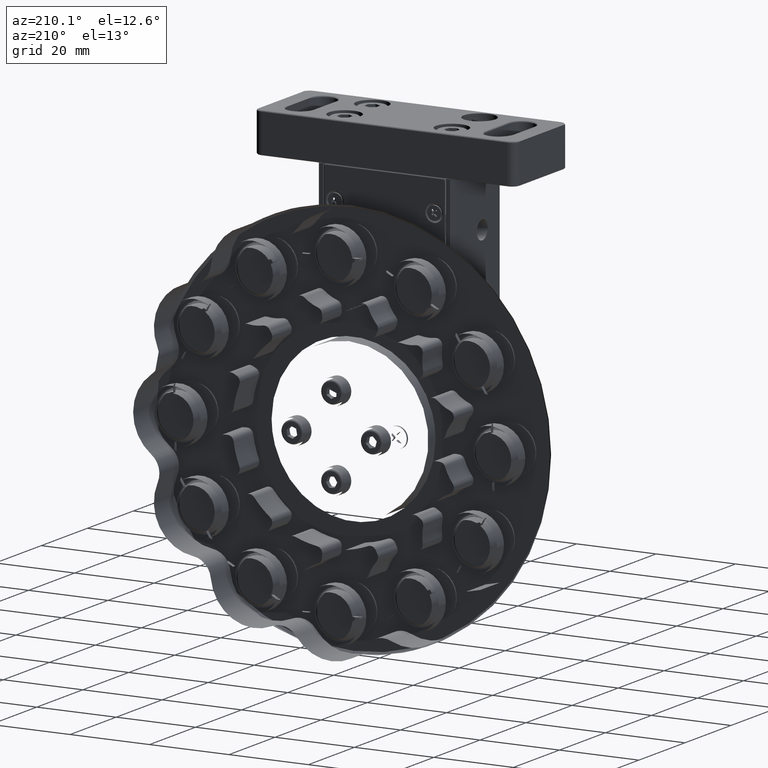
[diagram: clean part render]
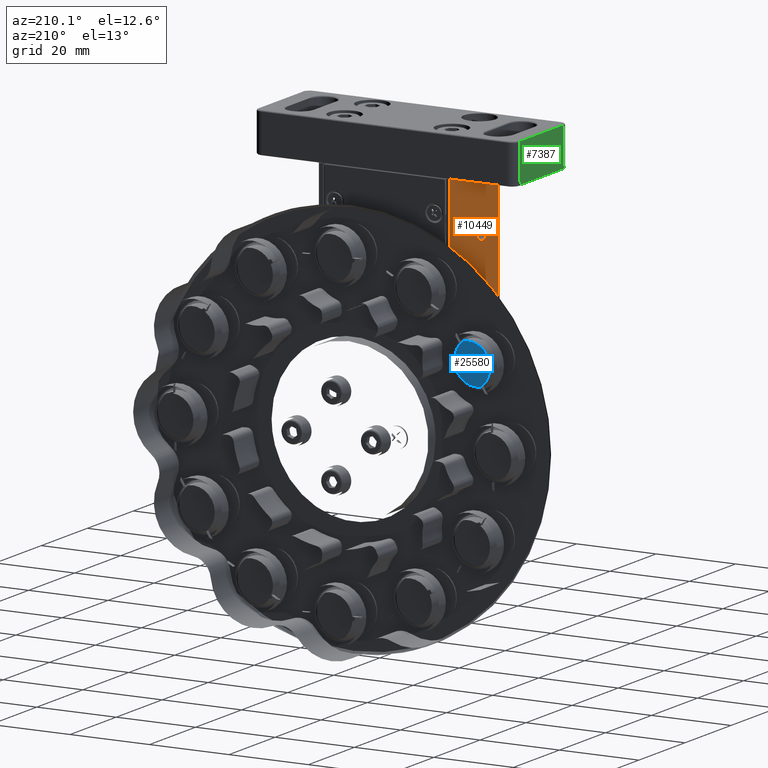
[diagram: same view with three faces highlighted in distinct colors, each labeled with its STEP entity id]
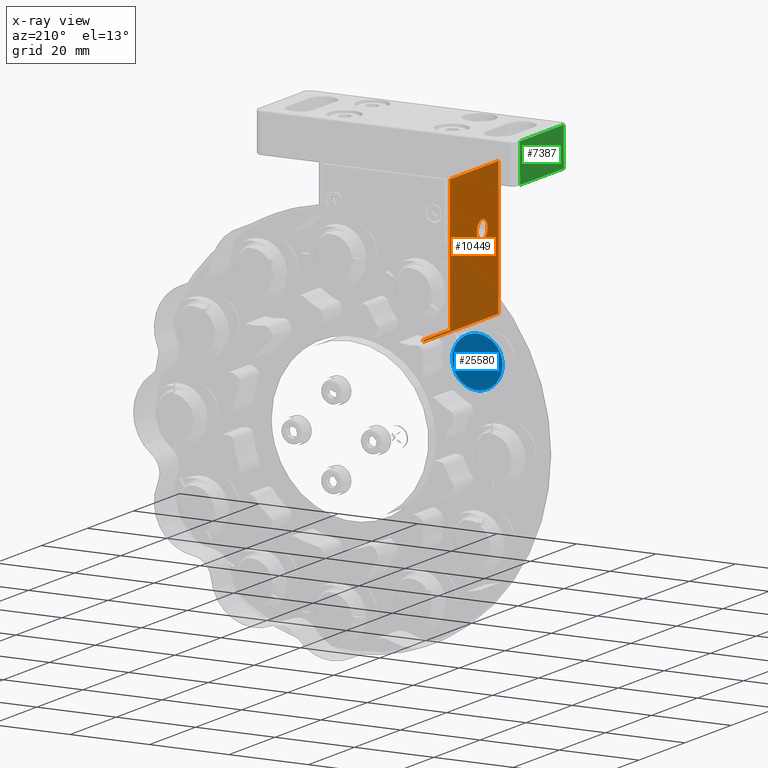
[diagram: x-ray of the same camera — body ghosted, the three highlighted faces saturated]
A machine part, auxiliary view with three faces highlighted in distinct colors.
The next image is the same camera in x-ray (body ghosted, the three faces saturated) — at least one of them is partly hidden behind the body in this view.
Their STEP definitions:

[orange] entity #10449 — the highlighted planar face has unit normal (1, 0, -0).
#63 = ORIENTED_EDGE ( 'NONE', *, *, #3099, .F. ) ;
#840 = DIRECTION ( 'NONE',  ( -1.031704847357960561E-16, 0.000000000000000000, -1.000000000000000000 ) ) ;
#1962 = CIRCLE ( 'NONE', #21142, 2.349999999999990763 ) ;
#2708 = ORIENTED_EDGE ( 'NONE', *, *, #3838, .T. ) ;
#3099 = EDGE_CURVE ( 'NONE', #26168, #29424, #16465, .T. ) ;
#3104 = VECTOR ( 'NONE', #16328, 1000.000000000000000 ) ;
#3119 = ORIENTED_EDGE ( 'NONE', *, *, #3580, .F. ) ;
#3580 = EDGE_CURVE ( 'NONE', #29424, #6994, #12234, .T. ) ;
#3750 = VERTEX_POINT ( 'NONE', #12898 ) ;
#3838 = EDGE_CURVE ( 'NONE', #28219, #6994, #29653, .T. ) ;
#4744 = DIRECTION ( 'NONE',  ( 0.000000000000000000, 0.000000000000000000, 1.000000000000000000 ) ) ;
#4745 = DIRECTION ( 'NONE',  ( -0.000000000000000000, -1.000000000000000000, -0.000000000000000000 ) ) ;
#5104 = VECTOR ( 'NONE', #24813, 1000.000000000000000 ) ;
#5358 = EDGE_CURVE ( 'NONE', #28219, #23549, #15290, .T. ) ;
#6027 = CARTESIAN_POINT ( 'NONE',  ( -34.53769428238040717, 14.58610521439863383, 91.37171027316250616 ) ) ;
#6610 = EDGE_CURVE ( 'NONE', #23549, #18981, #29003, .T. ) ;
#6658 = CARTESIAN_POINT ( 'NONE',  ( -34.53769428238040717, -2.413894785601366610, 91.37171027316249194 ) ) ;
#6680 = CARTESIAN_POINT ( 'NONE',  ( -34.53769428238040717, -6.413894785601367055, 125.0000000000000000 ) ) ;
#6792 = ORIENTED_EDGE ( 'NONE', *, *, #17665, .F. ) ;
#6994 = VERTEX_POINT ( 'NONE', #29384 ) ;
#7042 = CARTESIAN_POINT ( 'NONE',  ( -34.53769428238040007, -2.413894785601366610, 125.0000000000000000 ) ) ;
#8157 = VECTOR ( 'NONE', #12756, 1000.000000000000000 ) ;
#8402 = DIRECTION ( 'NONE',  ( -1.031704847357960561E-16, 0.000000000000000000, -1.000000000000000000 ) ) ;
#8419 = VECTOR ( 'NONE', #4745, 1000.000000000000000 ) ;
#8898 = VECTOR ( 'NONE', #10347, 1000.000000000000000 ) ;
#10347 = DIRECTION ( 'NONE',  ( 1.031704847357960561E-16, -0.000000000000000000, 1.000000000000000000 ) ) ;
#10449 = ADVANCED_FACE ( 'NONE', ( #17841, #24765 ), #10663, .F. ) ;
#10663 = PLANE ( 'NONE',  #11450 ) ;
#11450 = AXIS2_PLACEMENT_3D ( 'NONE', #26562, #20110, #8402 ) ;
#12139 = ORIENTED_EDGE ( 'NONE', *, *, #5358, .F. ) ;
#12234 = LINE ( 'NONE', #14489, #24216 ) ;
#12594 = ORIENTED_EDGE ( 'NONE', *, *, #26213, .F. ) ;
#12756 = DIRECTION ( 'NONE',  ( 1.031704847357960561E-16, -0.000000000000000000, 1.000000000000000000 ) ) ;
#12828 = ORIENTED_EDGE ( 'NONE', *, *, #6610, .F. ) ;
#12898 = CARTESIAN_POINT ( 'NONE',  ( -34.53769428238040717, 0.5861052143986325014, 113.3499999999999801 ) ) ;
#14108 = EDGE_LOOP ( 'NONE', ( #3119, #63, #6792, #12828, #12139, #2708 ) ) ;
#14489 = CARTESIAN_POINT ( 'NONE',  ( -34.53769428238040717, -6.413894785601367055, 91.37171027316250616 ) ) ;
#15290 = LINE ( 'NONE', #29092, #8898 ) ;
#16328 = DIRECTION ( 'NONE',  ( -0.000000000000000000, -1.000000000000000000, -0.000000000000000000 ) ) ;
#16465 = LINE ( 'NONE', #7042, #3104 ) ;
#17665 = EDGE_CURVE ( 'NONE', #18981, #26168, #19805, .T. ) ;
#17841 = FACE_OUTER_BOUND ( 'NONE', #14108, .T. ) ;
#18375 = CARTESIAN_POINT ( 'NONE',  ( -34.53769428238040007, 14.58610521439863383, 125.0000000000000000 ) ) ;
#18376 = CARTESIAN_POINT ( 'NONE',  ( -34.53769428238040007, -8.413894785601366166, 90.92247595290767492 ) ) ;
#18672 = DIRECTION ( 'NONE',  ( -1.000000000000000000, 0.000000000000000000, 1.031704847357960561E-16 ) ) ;
#18981 = VERTEX_POINT ( 'NONE', #26484 ) ;
#19805 = LINE ( 'NONE', #6027, #8157 ) ;
#20110 = DIRECTION ( 'NONE',  ( 1.000000000000000000, 0.000000000000000000, -1.031704847357960561E-16 ) ) ;
#21142 = AXIS2_PLACEMENT_3D ( 'NONE', #27559, #18672, #4744 ) ;
#23549 = VERTEX_POINT ( 'NONE', #24217 ) ;
#24216 = VECTOR ( 'NONE', #840, 1000.000000000000000 ) ;
#24217 = CARTESIAN_POINT ( 'NONE',  ( -34.53769428238040717, 26.08610521439862850, 91.37171027316249194 ) ) ;
#24765 = FACE_BOUND ( 'NONE', #28970, .T. ) ;
#24813 = DIRECTION ( 'NONE',  ( -0.000000000000000000, -1.000000000000000000, -0.000000000000000000 ) ) ;
#26125 = CARTESIAN_POINT ( 'NONE',  ( -34.53769428235425920, 26.08610521440115804, 90.92247595290767492 ) ) ;
#26168 = VERTEX_POINT ( 'NONE', #18375 ) ;
#26213 = EDGE_CURVE ( 'NONE', #3750, #3750, #1962, .T. ) ;
#26484 = CARTESIAN_POINT ( 'NONE',  ( -34.53769428238040717, 14.58610521439863206, 91.37171027316249194 ) ) ;
#26562 = CARTESIAN_POINT ( 'NONE',  ( -34.53769428238040717, -2.413894785601366610, 91.37171027316250616 ) ) ;
#27559 = CARTESIAN_POINT ( 'NONE',  ( -34.53769428238040717, 0.5861052143986325014, 110.9999999999999858 ) ) ;
#28219 = VERTEX_POINT ( 'NONE', #26125 ) ;
#28970 = EDGE_LOOP ( 'NONE', ( #12594 ) ) ;
#29003 = LINE ( 'NONE', #6658, #5104 ) ;
#29092 = CARTESIAN_POINT ( 'NONE',  ( -34.53769428238040717, 26.08610521439862850, 91.37171027316250616 ) ) ;
#29384 = CARTESIAN_POINT ( 'NONE',  ( -34.53769428238040007, -6.413894785601367055, 90.92247595290767492 ) ) ;
#29424 = VERTEX_POINT ( 'NONE', #6680 ) ;
#29653 = LINE ( 'NONE', #18376, #8419 ) ;

[blue] entity #25580 — the highlighted planar face has unit normal (-0, 1, 0).
#306 = CARTESIAN_POINT ( 'NONE',  ( -46.54255261715549352, 33.98610521441030841, 91.64871715717247014 ) ) ;
#375 = CARTESIAN_POINT ( 'NONE',  ( -55.83755807229569257, 33.98610521441032262, 95.50963303698830487 ) ) ;
#463 = CARTESIAN_POINT ( 'NONE',  ( -46.33581467661826991, 33.98610521441030130, 89.66713007071223274 ) ) ;
#614 = CARTESIAN_POINT ( 'NONE',  ( -48.99884628078824989, 33.98610521441032262, 95.17666034591101720 ) ) ;
#675 = CARTESIAN_POINT ( 'NONE',  ( -51.11486080441471813, 33.98610521441031551, 96.15595798441793818 ) ) ;
#766 = CARTESIAN_POINT ( 'NONE',  ( -46.35960467449062605, 33.98610521441031551, 90.62786825280095115 ) ) ;
#828 = CARTESIAN_POINT ( 'NONE',  ( -52.71940842209436795, 33.98610521441032262, 96.35626561464586359 ) ) ;
#913 = CARTESIAN_POINT ( 'NONE',  ( -51.72388958249054980, 33.98610521441032972, 83.72048057288830591 ) ) ;
#1055 = CARTESIAN_POINT ( 'NONE',  ( -47.83502010039241981, 33.98610521441032262, 85.88858657646885320 ) ) ;
#1200 = CARTESIAN_POINT ( 'NONE',  ( -54.95856204972223225, 33.98610521441032972, 84.06064785177267140 ) ) ;
#1335 = CARTESIAN_POINT ( 'NONE',  ( -57.84755923170578740, 33.98610521441031551, 86.30043805578121408 ) ) ;
#1499 = CARTESIAN_POINT ( 'NONE',  ( -48.29346967437561489, 33.98610521441031551, 85.40531669635137746 ) ) ;
#2329 = CARTESIAN_POINT ( 'NONE',  ( -58.76499867434053215, 33.98610521441032262, 91.81114672173197278 ) ) ;
#2478 = CARTESIAN_POINT ( 'NONE',  ( -54.95568087154751424, 33.98610521441032262, 95.94384509437611541 ) ) ;
#2564 = CARTESIAN_POINT ( 'NONE',  ( -47.87889789936966878, 33.98610521441030841, 94.15777795652786608 ) ) ;
#2771 = CARTESIAN_POINT ( 'NONE',  ( -56.11009563452113014, 33.98610521441032262, 95.34418072971917013 ) ) ;
#2920 = CARTESIAN_POINT ( 'NONE',  ( -52.07903295699774304, 33.98610521441030841, 96.32184721078584744 ) ) ;
#3006 = CARTESIAN_POINT ( 'NONE',  ( -46.46298617230700501, 33.98610521441031551, 91.33119768661372007 ) ) ;
#3067 = CARTESIAN_POINT ( 'NONE',  ( -49.69901997499638213, 33.98610521441031551, 95.60749005963396030 ) ) ;
#3321 = EDGE_LOOP ( 'NONE', ( #28759, #17229 ) ) ;
#3447 = CARTESIAN_POINT ( 'NONE',  ( -51.34751274708773394, 33.98610521441031551, 83.78427573844193432 ) ) ;
#3575 = CARTESIAN_POINT ( 'NONE',  ( -57.02149109115475056, 33.98610521441031551, 85.35914194068412542 ) ) ;
#3746 = CARTESIAN_POINT ( 'NONE',  ( -46.57055921393713049, 33.98610521441030841, 88.26284770227685783 ) ) ;
#4297 = CARTESIAN_POINT ( 'NONE',  ( -59.03497604850634417, 33.98610521441030841, 89.95930201162411777 ) ) ;
#4739 = CARTESIAN_POINT ( 'NONE',  ( -58.91745453246607411, 33.98610521441031551, 91.21464824495545543 ) ) ;
#4888 = CARTESIAN_POINT ( 'NONE',  ( -55.35796152007777948, 33.98610521441031551, 95.77377180928988309 ) ) ;
#5103 = VERTEX_POINT ( 'NONE', #7215 ) ;
#5272 = CARTESIAN_POINT ( 'NONE',  ( -47.50986163590216904, 33.98610521441031551, 93.69956194407345151 ) ) ;
#5335 = CARTESIAN_POINT ( 'NONE',  ( -51.46406218868658300, 33.98610521441031551, 96.23874409857008061 ) ) ;
#5372 = EDGE_CURVE ( 'NONE', #18242, #5103, #29100, .T. ) ;
#5421 = CARTESIAN_POINT ( 'NONE',  ( -49.52760767734621794, 33.98610521441031551, 95.51640553119226240 ) ) ;
#5482 = CARTESIAN_POINT ( 'NONE',  ( -50.39885881783833810, 33.98610521441031551, 95.93935214805993894 ) ) ;
#5575 = CARTESIAN_POINT ( 'NONE',  ( -46.88916215607108740, 33.98610521441032262, 87.36299461548779277 ) ) ;
#5722 = CARTESIAN_POINT ( 'NONE',  ( -51.02999327653991912, 33.98610521441032972, 83.86384218328691986 ) ) ;
#6170 = CARTESIAN_POINT ( 'NONE',  ( -46.61535035352641643, 33.98610521441031551, 88.11354112680984940 ) ) ;
#6305 = CARTESIAN_POINT ( 'NONE',  ( -57.27339373738662687, 33.98610521441032972, 85.61475924051279662 ) ) ;
#6411 = CARTESIAN_POINT ( 'NONE',  ( -57.68050199964804392, 33.98610521441032262, 93.91217820484897061 ) ) ;
#6708 = CARTESIAN_POINT ( 'NONE',  ( -58.19517138448740212, 33.98610521441030841, 93.15103299592438191 ) ) ;
#6853 = CARTESIAN_POINT ( 'NONE',  ( -57.71026192515790143, 33.98610521441032262, 93.87383038695442394 ) ) ;
#7215 = CARTESIAN_POINT ( 'NONE',  ( -49.69901997499638213, 33.98610521441031551, 95.60749005963396030 ) ) ;
#7373 = CARTESIAN_POINT ( 'NONE',  ( -48.76651533376750081, 33.98610521441031551, 95.00177814388349873 ) ) ;
#7431 = CARTESIAN_POINT ( 'NONE',  ( -51.76782802840221365, 33.98610521441031551, 96.28771377049586988 ) ) ;
#7522 = CARTESIAN_POINT ( 'NONE',  ( -48.08402713019276575, 33.98610521441031551, 94.38524075932211588 ) ) ;
#7589 = CARTESIAN_POINT ( 'NONE',  ( -52.02343865454446359, 33.98610521441030841, 96.31630524460605614 ) ) ;
#7740 = CARTESIAN_POINT ( 'NONE',  ( -56.95033385471455745, 33.98610521441030841, 94.69877891048497531 ) ) ;
#7823 = CARTESIAN_POINT ( 'NONE',  ( -46.39099666322111659, 33.98610521441030130, 89.08911759455794765 ) ) ;
#7963 = CARTESIAN_POINT ( 'NONE',  ( -47.69103002906020805, 33.98610521441030841, 86.06983734186307800 ) ) ;
#8096 = CARTESIAN_POINT ( 'NONE',  ( -55.82981319024818134, 33.98610521441032262, 84.48359446865833888 ) ) ;
#8110 = CARTESIAN_POINT ( 'NONE',  ( -47.16224948310409815, 33.98610521441031551, 86.84896700394070024 ) ) ;
#8235 = CARTESIAN_POINT ( 'NONE',  ( -58.18834347087381076, 33.98610521441030841, 86.84115236145743211 ) ) ;
#8246 = CARTESIAN_POINT ( 'NONE',  ( -54.48985715559300758, 33.98610521441032262, 83.91371175938364502 ) ) ;
#8379 = CARTESIAN_POINT ( 'NONE',  ( -58.99204664556392430, 33.98610521441031551, 89.31642300017286118 ) ) ;
#8394 = CARTESIAN_POINT ( 'NONE',  ( -47.64715894243835947, 33.98610521441031551, 86.12616961290454753 ) ) ;
#8540 = CARTESIAN_POINT ( 'NONE',  ( -56.49484811351060642, 33.98610521441030841, 84.92420118320947608 ) ) ;
#8632 = AXIS2_PLACEMENT_3D ( 'NONE', #27890, #16170, #12108 ) ;
#8658 = CARTESIAN_POINT ( 'NONE',  ( -58.83466841830828287, 33.98610521441032262, 91.56384962924856552 ) ) ;
#8801 = CARTESIAN_POINT ( 'NONE',  ( -57.52240076719252926, 33.98610521441031551, 94.11141342340393123 ) ) ;
#9239 = CARTESIAN_POINT ( 'NONE',  ( -59.00055764465573560, 33.98610521441030841, 90.59967747672698124 ) ) ;
#9524 = CARTESIAN_POINT ( 'NONE',  ( -54.32742759102352892, 33.98610521441032262, 96.13615781657033210 ) ) ;
#9672 = CARTESIAN_POINT ( 'NONE',  ( -53.47095461567096919, 33.98610521441031551, 96.30063899361304891 ) ) ;
#9765 = CARTESIAN_POINT ( 'NONE',  ( -48.56729701031778745, 33.98610521441030841, 94.84369033331229559 ) ) ;
#9917 = CARTESIAN_POINT ( 'NONE',  ( -46.39919100675544428, 33.98610521441031551, 90.95482085121732041 ) ) ;
#10066 = CARTESIAN_POINT ( 'NONE',  ( -53.89335867878202180, 33.98610521441031551, 83.76125590125002418 ) ) ;
#10211 = CARTESIAN_POINT ( 'NONE',  ( -53.58959283912285798, 33.98610521441031551, 83.71228622933867314 ) ) ;
#10363 = CARTESIAN_POINT ( 'NONE',  ( -47.50197734981319542, 33.98610521441031551, 86.32022740752896084 ) ) ;
#10493 = CARTESIAN_POINT ( 'NONE',  ( -57.37748934434934966, 33.98610521441032262, 85.72837657900620911 ) ) ;
#10642 = CARTESIAN_POINT ( 'NONE',  ( -58.95822986085175899, 33.98610521441032972, 89.04517914865745354 ) ) ;
#10656 = CARTESIAN_POINT ( 'NONE',  ( -50.40173999612657951, 33.98610521441032262, 84.05615490547066315 ) ) ;
#11062 = CARTESIAN_POINT ( 'NONE',  ( -58.99501567847615036, 33.98610521441031551, 90.65527177919469182 ) ) ;
#11481 = CARTESIAN_POINT ( 'NONE',  ( -58.75011794014469757, 33.98610521441031551, 91.86041452718664857 ) ) ;
#11625 = CARTESIAN_POINT ( 'NONE',  ( -56.37827237789424828, 33.98610521441032972, 95.16884879786847762 ) ) ;
#11707 = CARTESIAN_POINT ( 'NONE',  ( -49.27772205745944945, 33.98610521441031551, 95.36861606588827556 ) ) ;
#11920 = CARTESIAN_POINT ( 'NONE',  ( -53.63353128506138745, 33.98610521441032262, 96.27951942697002607 ) ) ;
#12108 = DIRECTION ( 'NONE',  ( -1.000000000000000000, -3.488278094132888891E-29, 0.000000000000000000 ) ) ;
#12162 = CARTESIAN_POINT ( 'NONE',  ( -46.37807144011296145, 33.98610521441030130, 90.79224418181642875 ) ) ;
#12221 = CARTESIAN_POINT ( 'NONE',  ( -53.30657868667901056, 33.98610521441030841, 96.31910575923518536 ) ) ;
#12313 = CARTESIAN_POINT ( 'NONE',  ( -53.33398221307466258, 33.98610521441030841, 83.68369475525240375 ) ) ;
#12458 = CARTESIAN_POINT ( 'NONE',  ( -48.40708701287279325, 33.98610521441031551, 85.30122108938475378 ) ) ;
#12602 = CARTESIAN_POINT ( 'NONE',  ( -54.41586273141477648, 33.98610521441031551, 83.89184878005681867 ) ) ;
#12732 = CARTESIAN_POINT ( 'NONE',  ( -57.47852296822960483, 33.98610521441032262, 85.84222204332576212 ) ) ;
#12880 = CARTESIAN_POINT ( 'NONE',  ( -58.81486825045005418, 33.98610521441031551, 88.35128284269723054 ) ) ;
#12894 = CARTESIAN_POINT ( 'NONE',  ( -46.59242219326117151, 33.98610521441031551, 88.18885327811275943 ) ) ;
#13029 = CARTESIAN_POINT ( 'NONE',  ( -56.07969881013043079, 33.98610521441031551, 84.63138393395993830 ) ) ;
#13372 = CARTESIAN_POINT ( 'NONE',  ( -55.65840089260395729, 33.98610521441031551, 84.39250994021978158 ) ) ;
#13451 = CARTESIAN_POINT ( 'NONE',  ( -59.00978873246190659, 33.98610521441031551, 90.49295634094099228 ) ) ;
#13971 = CARTESIAN_POINT ( 'NONE',  ( -47.97993152323756760, 33.98610521441032262, 94.27162342083543933 ) ) ;
#14116 = CARTESIAN_POINT ( 'NONE',  ( -46.33533501951770006, 33.98610521441031551, 90.36095555764113385 ) ) ;
#14265 = CARTESIAN_POINT ( 'NONE',  ( -46.36240518912343589, 33.98610521441031551, 89.34472822066389597 ) ) ;
#14328 = CARTESIAN_POINT ( 'NONE',  ( -50.04215853714585904, 33.98610521441031551, 95.78982595123568444 ) ) ;
#14366 = FACE_OUTER_BOUND ( 'NONE', #3321, .T. ) ;
#14414 = CARTESIAN_POINT ( 'NONE',  ( -47.16907739672428335, 33.98610521441031551, 93.15884763838843696 ) ) ;
#14476 = CARTESIAN_POINT ( 'NONE',  ( -56.63245041647540035, 33.98610521441030841, 94.97359363364010676 ) ) ;
#14568 = CARTESIAN_POINT ( 'NONE',  ( -47.70511680011182420, 33.98610521441030841, 93.95373998263211490 ) ) ;
#14625 = CARTESIAN_POINT ( 'NONE',  ( -50.79226219202602266, 33.98610521441031551, 96.06336343148458923 ) ) ;
#14722 = CARTESIAN_POINT ( 'NONE',  ( -54.53912496105346008, 33.98610521441030130, 83.92859249358079410 ) ) ;
#14861 = CARTESIAN_POINT ( 'NONE',  ( -46.73930466512293691, 33.98610521441032262, 87.72031848545141486 ) ) ;
#14991 = CARTESIAN_POINT ( 'NONE',  ( -55.65840089260395729, 33.98610521441031551, 84.39250994021978158 ) ) ;
#15157 = CARTESIAN_POINT ( 'NONE',  ( -49.42922055190962993, 33.98610521441031551, 84.54335870056779356 ) ) ;
#15305 = CARTESIAN_POINT ( 'NONE',  ( -48.52093247720274150, 33.98610521441031551, 85.20018746549467892 ) ) ;
#15442 = CARTESIAN_POINT ( 'NONE',  ( -57.44602804454810752, 33.98610521441032262, 85.80502526403256525 ) ) ;
#15858 = CARTESIAN_POINT ( 'NONE',  ( -58.04742348374978178, 33.98610521441031551, 93.40086629546881625 ) ) ;
#16170 = DIRECTION ( 'NONE',  ( -3.488278094132888891E-29, 1.000000000000000000, 0.000000000000000000 ) ) ;
#16369 = CARTESIAN_POINT ( 'NONE',  ( -47.91139282304476410, 33.98610521441030130, 94.19497473581441227 ) ) ;
#16509 = CARTESIAN_POINT ( 'NONE',  ( -46.34763213513640068, 33.98610521441031551, 89.50704365892467251 ) ) ;
#16576 = CARTESIAN_POINT ( 'NONE',  ( -50.81829590652862549, 33.98610521441030841, 96.07140750626822978 ) ) ;
#16655 = CARTESIAN_POINT ( 'NONE',  ( -48.33592977641762189, 33.98610521441030841, 94.64085805914446325 ) ) ;
#16864 = CARTESIAN_POINT ( 'NONE',  ( -50.94155813612790240, 33.98610521441032262, 96.10815121978224340 ) ) ;
#16865 = EDGE_CURVE ( 'NONE', #5103, #18242, #18476, .T. ) ;
#16950 = CARTESIAN_POINT ( 'NONE',  ( -47.60286918658361088, 33.98610521441031551, 86.18391573056999277 ) ) ;
#17096 = CARTESIAN_POINT ( 'NONE',  ( -49.99945934739911024, 33.98610521441030841, 84.22622819061730581 ) ) ;
#17226 = CARTESIAN_POINT ( 'NONE',  ( -56.59090553383138200, 33.98610521441030841, 84.99822185596941893 ) ) ;
#17229 = ORIENTED_EDGE ( 'NONE', *, *, #5372, .T. ) ;
#17381 = CARTESIAN_POINT ( 'NONE',  ( -49.24732523301832998, 33.98610521441031551, 84.65581927017788644 ) ) ;
#17512 = CARTESIAN_POINT ( 'NONE',  ( -58.99781619311028891, 33.98610521441031551, 89.37213174704922380 ) ) ;
#17528 = CARTESIAN_POINT ( 'NONE',  ( -51.88646625189826267, 33.98610521441032262, 83.69936100624362041 ) ) ;
#17788 = CARTESIAN_POINT ( 'NONE',  ( -57.85544351777553373, 33.98610521441032972, 93.67977259233973086 ) ) ;
#18230 = CARTESIAN_POINT ( 'NONE',  ( -58.78686165366545424, 33.98610521441032262, 91.73715229756192002 ) ) ;
#18242 = VERTEX_POINT ( 'NONE', #13372 ) ;
#18476 = B_SPLINE_CURVE_WITH_KNOTS ( 'NONE', 3,
 ( #27937, #5421, #11707, #614, #23280, #23727, #7373, #25972, #9765, #16655, #7522, #13971, #16369, #2564, #14568, #5272, #20724, #20869, #14414, #23582, #23136, #306, #3006, #9917, #12162, #27793, #766, #14116, #21025, #463, #16509, #25669, #14265, #7823, #26416, #28956, #3746, #12894, #21475, #6170, #14861, #5575, #8110, #28521, #10363, #16950, #8394, #24019, #7963, #1055, #26270, #1499, #12458, #24166, #15305, #24470, #19653, #17381, #15157, #24314, #17096, #10656, #5722, #3447, #913, #17528, #28818, #22058, #26118, #21616, #19509, #19793, #26713, #12313, #10211, #10066, #19215, #12602, #8246, #14722, #26556, #1200, #28374, #23878 ),
 .UNSPECIFIED., .F., .F.,
 ( 4, 1, 1, 1, 2, 2, 1, 1, 2, 2, 1, 2, 2, 2, 1, 1, 2, 2, 1, 1, 2, 2, 1, 1, 1, 2, 2, 2, 1, 1, 1, 2, 2, 1, 1, 2, 2, 1, 2, 2, 2, 1, 1, 2, 2, 1, 1, 2, 2, 1, 1, 1, 2, 2, 4 ),
 ( 0.000000000000000000, 0.03125000000000761197, 0.04687500000001142142, 0.05468750000001332268, 0.05859375000001539741, 0.06250000000001747213, 0.09375000000002978173, 0.1093750000000348194, 0.1171875000000373312, 0.1250000000000398570, 0.1562500000000479616, 0.1718750000000520139, 0.1875000000000560940, 0.2500000000000752731, 0.2812500000000850431, 0.2968750000000899281, 0.3046875000000913714, 0.3125000000000928146, 0.3437500000000986433, 0.3593750000001015854, 0.3671875000001029732, 0.3750000000001044165, 0.4062500000001145195, 0.4218750000001195155, 0.4296875000001229017, 0.4335937500001245115, 0.4375000000001260658, 0.5000000000001353362, 0.5312500000001402212, 0.5468750000001419975, 0.5546875000001428857, 0.5585937500001428857, 0.5625000000001427747, 0.5937500000001389999, 0.6093750000001374456, 0.6171875000001358913, 0.6250000000001343370, 0.6562500000001268985, 0.6718750000001225686, 0.6875000000001182388, 0.7500000000001000311, 0.7812500000000907052, 0.7968750000000859313, 0.8046875000000829337, 0.8125000000000800471, 0.8437500000000690559, 0.8593750000000640599, 0.8671875000000612843, 0.8750000000000583977, 0.9062500000000459632, 0.9218750000000398570, 0.9296875000000373035, 0.9335937500000357492, 0.9375000000000343059, 1.000000000000000000 ),
 .UNSPECIFIED. ) ;
#18522 = CARTESIAN_POINT ( 'NONE',  ( -53.36228743355121651, 33.98610521441031551, 96.31333621168761283 ) ) ;
#18819 = CARTESIAN_POINT ( 'NONE',  ( -54.00990812044805267, 33.98610521441032262, 96.21572426141791823 ) ) ;
#18978 = CARTESIAN_POINT ( 'NONE',  ( -55.92820031565196359, 33.98610521441032262, 95.45664129931350317 ) ) ;
#19215 = CARTESIAN_POINT ( 'NONE',  ( -54.24256006308679900, 33.98610521441030841, 83.84404201541057944 ) ) ;
#19494 = CARTESIAN_POINT ( 'NONE',  ( -56.35857458680423093, 33.98610521441030841, 84.82333965393853248 ) ) ;
#19509 = CARTESIAN_POINT ( 'NONE',  ( -53.01158036296636311, 33.98610521441030841, 83.65710424274502088 ) ) ;
#19638 = CARTESIAN_POINT ( 'NONE',  ( -58.02289116356418930, 33.98610521441030841, 86.56861479916537405 ) ) ;
#19653 = CARTESIAN_POINT ( 'NONE',  ( -48.97914848962857803, 33.98610521441030841, 84.83115120204040238 ) ) ;
#19777 = CARTESIAN_POINT ( 'NONE',  ( -58.97934942749177623, 33.98610521441031551, 89.20775581805077081 ) ) ;
#19793 = CARTESIAN_POINT ( 'NONE',  ( -53.17166677477125347, 33.98610521441032262, 83.66892170126315875 ) ) ;
#20215 = CARTESIAN_POINT ( 'NONE',  ( -57.66639083854204273, 33.98610521441031551, 93.93016265798824804 ) ) ;
#20352 = CARTESIAN_POINT ( 'NONE',  ( -58.61811620248414556, 33.98610521441032262, 92.27968151440012434 ) ) ;
#20496 = CARTESIAN_POINT ( 'NONE',  ( -58.96642420438216448, 33.98610521441031551, 90.91088240527622588 ) ) ;
#20640 = CARTESIAN_POINT ( 'NONE',  ( -58.74207051407348956, 33.98610521441032262, 91.88645887304403459 ) ) ;
#20724 = CARTESIAN_POINT ( 'NONE',  ( -47.33452970404209736, 33.98610521441030841, 93.43138520068906416 ) ) ;
#20869 = CARTESIAN_POINT ( 'NONE',  ( -47.22206913443533693, 33.98610521441031551, 93.24948988180491938 ) ) ;
#20938 = CARTESIAN_POINT ( 'NONE',  ( -56.83648839040863976, 33.98610521441030841, 94.79981253435111910 ) ) ;
#21025 = CARTESIAN_POINT ( 'NONE',  ( -46.32244481908978173, 33.98610521441031551, 90.04069798825443627 ) ) ;
#21088 = CARTESIAN_POINT ( 'NONE',  ( -52.34584050456054172, 33.98610521441032972, 96.34289575711522957 ) ) ;
#21388 = CARTESIAN_POINT ( 'NONE',  ( -56.87368516969097954, 33.98610521441032262, 94.76731761067975413 ) ) ;
#21475 = CARTESIAN_POINT ( 'NONE',  ( -46.60730292745634529, 33.98610521441031551, 88.13958547266234689 ) ) ;
#21616 = CARTESIAN_POINT ( 'NONE',  ( -52.63801244540805868, 33.98610521441031551, 83.64373438521654691 ) ) ;
#21895 = CARTESIAN_POINT ( 'NONE',  ( -56.55257297603538547, 33.98610521441031551, 84.96847405345744164 ) ) ;
#22042 = CARTESIAN_POINT ( 'NONE',  ( -58.89443469530242226, 33.98610521441030841, 88.66880231326796036 ) ) ;
#22058 = CARTESIAN_POINT ( 'NONE',  ( -52.05084218093527682, 33.98610521441031551, 83.68089424061729176 ) ) ;
#22611 = CARTESIAN_POINT ( 'NONE',  ( -59.02208584808025194, 33.98610521441031551, 89.63904444222680468 ) ) ;
#23136 = CARTESIAN_POINT ( 'NONE',  ( -46.73486533935334108, 33.98610521441032972, 92.27697043762964313 ) ) ;
#23280 = CARTESIAN_POINT ( 'NONE',  ( -48.86257275408513578, 33.98610521441031551, 95.07579881664176469 ) ) ;
#23388 = PLANE ( 'NONE',  #8632 ) ;
#23582 = CARTESIAN_POINT ( 'NONE',  ( -46.90493862449483942, 33.98610521441031551, 92.67925108634028675 ) ) ;
#23727 = CARTESIAN_POINT ( 'NONE',  ( -48.80484789156220415, 33.98610521441031551, 95.03152594639483652 ) ) ;
#23878 = CARTESIAN_POINT ( 'NONE',  ( -55.65840089260395729, 33.98610521441031551, 84.39250994021978158 ) ) ;
#24019 = CARTESIAN_POINT ( 'NONE',  ( -47.67691886795012124, 33.98610521441030841, 86.08782179500747134 ) ) ;
#24151 = CARTESIAN_POINT ( 'NONE',  ( -56.79012385726660028, 33.98610521441032262, 85.15630966652710754 ) ) ;
#24166 = CARTESIAN_POINT ( 'NONE',  ( -48.48373569790211235, 33.98610521441030841, 85.23268238918281270 ) ) ;
#24314 = CARTESIAN_POINT ( 'NONE',  ( -49.51986279533549151, 33.98610521441030841, 84.49036696285205039 ) ) ;
#24456 = CARTESIAN_POINT ( 'NONE',  ( -58.62255552823656046, 33.98610521441031551, 87.72302956219208170 ) ) ;
#24470 = CARTESIAN_POINT ( 'NONE',  ( -48.72497045108062963, 33.98610521441032972, 85.02640636624512638 ) ) ;
#25008 = CARTESIAN_POINT ( 'NONE',  ( -57.31956849302994783, 33.98610521441032262, 94.34278065730006801 ) ) ;
#25295 = CARTESIAN_POINT ( 'NONE',  ( -58.46825871154694454, 33.98610521441032262, 92.63700538434312648 ) ) ;
#25580 = ADVANCED_FACE ( 'NONE', ( #14366 ), #23388, .T. ) ;
#25669 = CARTESIAN_POINT ( 'NONE',  ( -46.35686322294347406, 33.98610521441031551, 89.40032252313336869 ) ) ;
#25972 = CARTESIAN_POINT ( 'NONE',  ( -48.74854777573942499, 33.98610521441031551, 94.98768040466960372 ) ) ;
#26118 = CARTESIAN_POINT ( 'NONE',  ( -52.31775487604902963, 33.98610521441031551, 83.65662458564446524 ) ) ;
#26270 = CARTESIAN_POINT ( 'NONE',  ( -48.03785237454349044, 33.98610521441030841, 85.65721934258688464 ) ) ;
#26400 = CARTESIAN_POINT ( 'NONE',  ( -56.60887309186288263, 33.98610521441030841, 85.01231959518588610 ) ) ;
#26416 = CARTESIAN_POINT ( 'NONE',  ( -46.43996633513939543, 33.98610521441032262, 88.78535175486412356 ) ) ;
#26541 = CARTESIAN_POINT ( 'NONE',  ( -58.45248224311445284, 33.98610521441030841, 87.32074891354466217 ) ) ;
#26556 = CARTESIAN_POINT ( 'NONE',  ( -54.56515867557676813, 33.98610521441030841, 83.93663656837040321 ) ) ;
#26713 = CARTESIAN_POINT ( 'NONE',  ( -53.27838791057636314, 33.98610521441030841, 83.67815278907019660 ) ) ;
#26968 = CARTESIAN_POINT ( 'NONE',  ( -57.75455168100994285, 33.98610521441031551, 93.81608426929243194 ) ) ;
#27706 = CARTESIAN_POINT ( 'NONE',  ( -53.03966599149534744, 33.98610521441030841, 96.34337541421423623 ) ) ;
#27793 = CARTESIAN_POINT ( 'NONE',  ( -46.36537422203884518, 33.98610521441031551, 90.68357699968835561 ) ) ;
#27890 = CARTESIAN_POINT ( 'NONE',  ( -52.67871043380016260, 33.98610521441031551, 89.99999999992685673 ) ) ;
#27937 = CARTESIAN_POINT ( 'NONE',  ( -49.69901997499638213, 33.98610521441031551, 95.60749005963396030 ) ) ;
#27992 = CARTESIAN_POINT ( 'NONE',  ( -52.18575409278187749, 33.98610521441031551, 96.33107829859476112 ) ) ;
#28148 = CARTESIAN_POINT ( 'NONE',  ( -50.86756371197265025, 33.98610521441031551, 96.08628824046125771 ) ) ;
#28374 = CARTESIAN_POINT ( 'NONE',  ( -55.31526233041471841, 33.98610521441031551, 84.21017404859694011 ) ) ;
#28521 = CARTESIAN_POINT ( 'NONE',  ( -47.30999738383505360, 33.98610521441031551, 86.59913370440483504 ) ) ;
#28759 = ORIENTED_EDGE ( 'NONE', *, *, #16865, .T. ) ;
#28802 = CARTESIAN_POINT ( 'NONE',  ( -58.13535173316881099, 33.98610521441030841, 86.75051011804926304 ) ) ;
#28818 = CARTESIAN_POINT ( 'NONE',  ( -51.99513343403182830, 33.98610521441032262, 83.68666378816773488 ) ) ;
#28939 = CARTESIAN_POINT ( 'NONE',  ( -57.65230406749284953, 33.98610521441030841, 86.04626001722206752 ) ) ;
#28956 = CARTESIAN_POINT ( 'NONE',  ( -46.52275244929591480, 33.98610521441030841, 88.43615037057952577 ) ) ;
#29100 = B_SPLINE_CURVE_WITH_KNOTS ( 'NONE', 3,
 ( #14991, #8096, #13029, #19494, #8540, #21895, #17226, #26400, #24151, #3575, #6305, #10493, #15442, #12732, #28939, #1335, #19638, #28802, #8235, #26541, #24456, #12880, #22042, #10642, #19777, #8379, #17512, #22611, #4297, #29355, #13451, #9239, #11062, #20496, #4739, #8658, #18230, #2329, #11481, #20640, #20352, #25295, #6708, #15858, #17788, #26968, #6853, #6411, #20215, #8801, #25008, #29650, #7740, #21388, #20938, #14476, #11625, #2771, #18978, #375, #4888, #2478, #9524, #18819, #11920, #9672, #18522, #12221, #27706, #828, #21088, #27992, #2920, #7589, #7431, #5335, #675, #16864, #28148, #16576, #14625, #5482, #14328, #3067 ),
 .UNSPECIFIED., .F., .F.,
 ( 4, 1, 1, 1, 2, 2, 1, 1, 2, 2, 1, 2, 2, 2, 1, 1, 2, 2, 1, 1, 2, 2, 1, 1, 1, 2, 2, 2, 1, 1, 1, 2, 2, 1, 1, 2, 2, 1, 2, 2, 2, 1, 1, 2, 2, 1, 1, 2, 2, 1, 1, 1, 2, 2, 4 ),
 ( 0.000000000000000000, 0.03125000000002353673, 0.04687500000003530509, 0.05468750000004229950, 0.05859375000004512363, 0.06250000000004794776, 0.09375000000006115941, 0.1093750000000670297, 0.1171875000000688338, 0.1250000000000706379, 0.1562500000000787426, 0.1718750000000827949, 0.1875000000000868472, 0.2500000000000978662, 0.2812500000001041944, 0.2968750000001073586, 0.3046875000001098566, 0.3125000000001123546, 0.3437500000001220135, 0.3593750000001268430, 0.3671875000001292855, 0.3750000000001317280, 0.4062500000001432743, 0.4218750000001489364, 0.4296875000001516565, 0.4335937500001519895, 0.4375000000001523226, 0.5000000000001564304, 0.5312500000001585398, 0.5468750000001602052, 0.5546875000001613154, 0.5585937500001613154, 0.5625000000001614264, 0.5937500000001455502, 0.6093750000001372236, 0.6171875000001326717, 0.6250000000001281197, 0.6562500000001101341, 0.6718750000001012523, 0.6875000000000923706, 0.7500000000000615064, 0.7812500000000468514, 0.7968750000000397460, 0.8046875000000361933, 0.8125000000000326406, 0.8437500000000217604, 0.8593750000000167644, 0.8671875000000147660, 0.8750000000000127676, 0.9062500000000075495, 0.9218750000000049960, 0.9296875000000042188, 0.9335937500000043299, 0.9375000000000045519, 1.000000000000000000 ),
 .UNSPECIFIED. ) ;
#29355 = CARTESIAN_POINT ( 'NONE',  ( -59.02160619097890759, 33.98610521441030841, 90.33286992916009694 ) ) ;
#29650 = CARTESIAN_POINT ( 'NONE',  ( -57.06395119320453091, 33.98610521441031551, 94.59468330352726184 ) ) ;

[green] entity #7387 — the highlighted planar face has unit normal (1, 0, 0).
#65 = DIRECTION ( 'NONE',  ( 0.000000000000000000, 0.000000000000000000, -1.000000000000000000 ) ) ;
#2360 = EDGE_CURVE ( 'NONE', #5718, #13346, #11468, .T. ) ;
#3798 = VECTOR ( 'NONE', #23370, 1000.000000000000000 ) ;
#4139 = DIRECTION ( 'NONE',  ( 1.000000000000000000, 0.000000000000000000, 0.000000000000000000 ) ) ;
#5018 = CARTESIAN_POINT ( 'NONE',  ( -51.03769428237577443, 12.58610521439864094, 125.2000000000262929 ) ) ;
#5718 = VERTEX_POINT ( 'NONE', #28910 ) ;
#5825 = ORIENTED_EDGE ( 'NONE', *, *, #16552, .F. ) ;
#6402 = ORIENTED_EDGE ( 'NONE', *, *, #12803, .F. ) ;
#6403 = CARTESIAN_POINT ( 'NONE',  ( -51.03769428238040717, 14.58610521439864094, 125.0000000000000000 ) ) ;
#7360 = LINE ( 'NONE', #7811, #21094 ) ;
#7387 = ADVANCED_FACE ( 'NONE', ( #25000 ), #9084, .F. ) ;
#7760 = CARTESIAN_POINT ( 'NONE',  ( -51.03769428238040717, 3.086105214398640051, 135.0000000000000000 ) ) ;
#7811 = CARTESIAN_POINT ( 'NONE',  ( -51.03769428238040717, 12.58610521439864094, 125.0000000000000000 ) ) ;
#9084 = PLANE ( 'NONE',  #20955 ) ;
#10001 = LINE ( 'NONE', #7760, #3798 ) ;
#10263 = DIRECTION ( 'NONE',  ( 0.000000000000000000, 1.000000000000000000, -0.000000000000000000 ) ) ;
#11468 = LINE ( 'NONE', #20628, #14066 ) ;
#11996 = DIRECTION ( 'NONE',  ( 0.000000000000000000, 0.000000000000000000, 1.000000000000000000 ) ) ;
#12803 = EDGE_CURVE ( 'NONE', #13346, #14794, #23632, .T. ) ;
#13346 = VERTEX_POINT ( 'NONE', #29426 ) ;
#14066 = VECTOR ( 'NONE', #65, 1000.000000000000000 ) ;
#14714 = ORIENTED_EDGE ( 'NONE', *, *, #25308, .F. ) ;
#14794 = VERTEX_POINT ( 'NONE', #5018 ) ;
#15674 = EDGE_LOOP ( 'NONE', ( #5825, #14714, #6402, #19863 ) ) ;
#16552 = EDGE_CURVE ( 'NONE', #24944, #5718, #10001, .T. ) ;
#19863 = ORIENTED_EDGE ( 'NONE', *, *, #2360, .F. ) ;
#20205 = DIRECTION ( 'NONE',  ( 0.000000000000000000, 0.000000000000000000, -1.000000000000000000 ) ) ;
#20628 = CARTESIAN_POINT ( 'NONE',  ( -51.03769428238040717, -6.413894785601356396, 125.0000000000000000 ) ) ;
#20921 = VECTOR ( 'NONE', #10263, 1000.000000000000000 ) ;
#20955 = AXIS2_PLACEMENT_3D ( 'NONE', #6403, #4139, #20205 ) ;
#21094 = VECTOR ( 'NONE', #11996, 1000.000000000000000 ) ;
#23370 = DIRECTION ( 'NONE',  ( 0.000000000000000000, -1.000000000000000000, 0.000000000000000000 ) ) ;
#23632 = LINE ( 'NONE', #28289, #20921 ) ;
#24706 = CARTESIAN_POINT ( 'NONE',  ( -50.93769428237928309, 12.58610521439864272, 134.8999999999984993 ) ) ;
#24944 = VERTEX_POINT ( 'NONE', #24706 ) ;
#25000 = FACE_OUTER_BOUND ( 'NONE', #15674, .T. ) ;
#25308 = EDGE_CURVE ( 'NONE', #14794, #24944, #7360, .T. ) ;
#28289 = CARTESIAN_POINT ( 'NONE',  ( -51.03769428238040717, 3.086105214398640051, 125.2000000000000028 ) ) ;
#28910 = CARTESIAN_POINT ( 'NONE',  ( -50.93769428236194585, -6.413894785601356396, 134.9000000000158366 ) ) ;
#29426 = CARTESIAN_POINT ( 'NONE',  ( -51.03769428238519623, -6.413894785601359949, 125.2000000000016371 ) ) ;